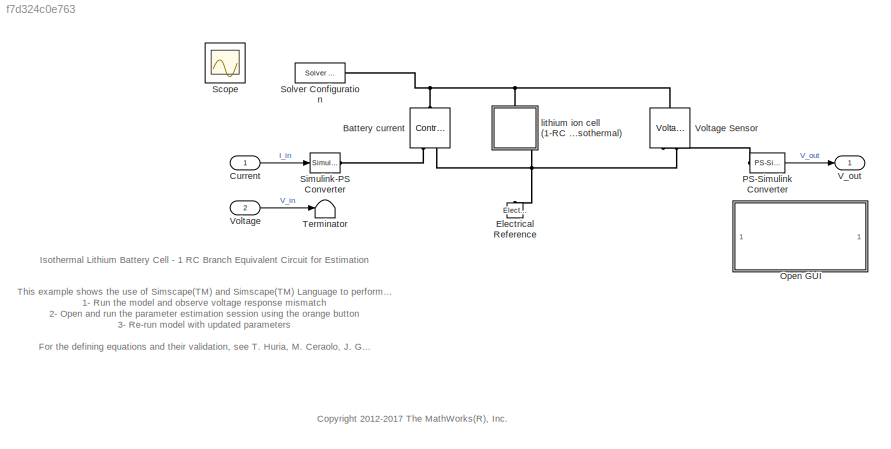
MODEL slx_f7d324c0e763
KIND model
CONFIG AbsTol = auto
CONFIG EnableMultiTasking = on
CONFIG FixedStep = auto
CONFIG MaxStep = 250
CONFIG MinStep = auto
CONFIG PreLoadFcn = ssc_lithium_cell_1RC_estim_ini
CONFIG RelTol = 1e-3
CONFIG SampleTimeConstraint = Unconstrained
CONFIG Solver = ode15s
CONFIG SolverName = ode15s
CONFIG StartTime = 0
CONFIG StopTime = 37000
BLOCK [Reference] Battery current  REF=fl_lib/Electrical/Electrical Sources/Controlled Current
Source
  Ports = [0, 0, 0, 0, 0, 1, 2]
  SourceBlock = fl_lib/Electrical/Electrical Sources/Controlled Current\nSource
  SourceProductBaseCode = SS
  SourceProductName = Simscape
  SourceType = Controlled Current\nSource
BLOCK [Inport] Current
  IconDisplay = Port number
BLOCK [Reference] Electrical Reference  REF=fl_lib/Electrical/Electrical Elements/Electrical Reference
  Ports = [0, 0, 0, 0, 0, 1]
  SourceBlock = fl_lib/Electrical/Electrical Elements/Electrical Reference
  SourceProductBaseCode = SS
  SourceProductName = Simscape
  SourceType = Electrical Reference
BLOCK [SubSystem] Open GUI
  OpenFcn = % speload('ssc_lithium_cell_SDO_Project', 'Project - ssc_lithium_cell_1RC_estim', 'One Temp Estim');\nspeload('ssc_lithium_cell_1RC_estim_spesession')
  Ports = []
  RequestExecContextInheritance = off
  Variant = off
BLOCK [Reference] PS-Simulink Converter  REF=nesl_utility/PS-Simulink
Converter
  Ports = [0, 1, 0, 0, 0, 1]
  SourceBlock = nesl_utility/PS-Simulink\nConverter
  SourceProductBaseCode = SS
  SourceProductName = Simscape
  SourceType = PS-Simulink\nConverter
BLOCK [Scope] Scope
  IOType = viewer
  NumInputPorts = 1
  Ports = []
  ScopeSpecificationString = Simulink.scopes.TimeScopeBlockCfg('CurrentConfiguration', extmgr.ConfigurationSet(extmgr.Configuration('Core','General UI',true),extmgr.Configuration('Core','Source UI',true),extmgr.Configuration('Sources','WiredSimulink',true,'DataLoggingMaxPoints','7500','DataLoggingSaveFormat','Array','DataLoggingDecimation','1','DataLoggingDecimateData',true),extmgr.Configuration('Visuals','Time Domain',true,'...<+3074ch>
BLOCK [Reference] Simulink-PS Converter  REF=nesl_utility/Simulink-PS
Converter
  Ports = [1, 0, 0, 0, 0, 0, 1]
  SourceBlock = nesl_utility/Simulink-PS\nConverter
  SourceProductBaseCode = SS
  SourceProductName = Simscape
  SourceType = Simulink-PS\nConverter
BLOCK [Reference] Solver Configuration  REF=nesl_utility/Solver
Configuration
  Ports = [0, 0, 0, 0, 0, 0, 1]
  SourceBlock = nesl_utility/Solver\nConfiguration
  SourceProductBaseCode = SS
  SourceProductName = Simscape
  SourceType = Solver\nConfiguration
BLOCK [Terminator] Terminator
BLOCK [Outport] V_out
  IconDisplay = Port number
BLOCK [Inport] Voltage
  IconDisplay = Port number
  Port = 2
BLOCK [Reference] Voltage Sensor  REF=fl_lib/Electrical/Electrical Sensors/Voltage Sensor
  Ports = [0, 0, 0, 0, 0, 1, 2]
  SourceBlock = fl_lib/Electrical/Electrical Sensors/Voltage Sensor
  SourceProductBaseCode = SS
  SourceProductName = Simscape
  SourceType = Voltage Sensor
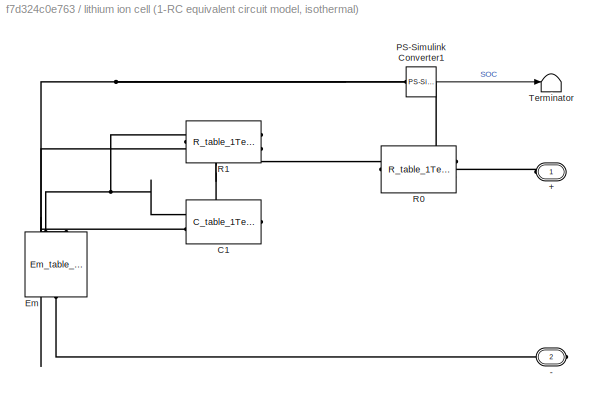
BLOCK [SubSystem] lithium ion cell (1-RC equivalent circuit model, isothermal)
  Ports = [0, 0, 0, 0, 0, 1, 1]
  RequestExecContextInheritance = off
  Variant = off
BLOCK [PMIOPort] lithium ion cell (1-RC equivalent circuit model, isothermal)/+
  Port = 1
  Side = Left
  Tag = PMCPort
BLOCK [PMIOPort] lithium ion cell (1-RC equivalent circuit model, isothermal)/-
  Port = 2
  Side = Right
  Tag = PMCPort
BLOCK [Reference] lithium ion cell (1-RC equivalent circuit model, isothermal)/C1  REF=LiBatteryElements_lib/C_table_1Temp
  Ports = [0, 0, 0, 0, 0, 2, 1]
  SourceBlock = LiBatteryElements_lib/C_table_1Temp
  SourceType = C_table_1Temp
BLOCK [Reference] lithium ion cell (1-RC equivalent circuit model, isothermal)/Em  REF=LiBatteryElements_lib/Em_table_1Temp
  Ports = [0, 0, 0, 0, 0, 2, 1]
  SourceBlock = LiBatteryElements_lib/Em_table_1Temp
  SourceType = Em_table_1Temp
BLOCK [Reference] lithium ion cell (1-RC equivalent circuit model, isothermal)/PS-Simulink Converter1  REF=nesl_utility/PS-Simulink
Converter
  Ports = [0, 1, 0, 0, 0, 1]
  SourceBlock = nesl_utility/PS-Simulink\nConverter
  SourceProductBaseCode = SS
  SourceProductName = Simscape
  SourceType = PS-Simulink\nConverter
BLOCK [Reference] lithium ion cell (1-RC equivalent circuit model, isothermal)/R0  REF=LiBatteryElements_lib/R_table_1Temp
  Ports = [0, 0, 0, 0, 0, 2, 1]
  SourceBlock = LiBatteryElements_lib/R_table_1Temp
  SourceType = R_table_1Temp
BLOCK [Reference] lithium ion cell (1-RC equivalent circuit model, isothermal)/R1  REF=LiBatteryElements_lib/R_table_1Temp
  Ports = [0, 0, 0, 0, 0, 2, 1]
  SourceBlock = LiBatteryElements_lib/R_table_1Temp
  SourceType = R_table_1Temp
BLOCK [Terminator] lithium ion cell (1-RC equivalent circuit model, isothermal)/Terminator
ANNOTATION (root): <copyright redacted>
ANNOTATION (root): Isothermal Lithium Battery Cell - 1 RC Branch Equivalent Circuit for Estimation
ANNOTATION (root): This example shows the use of Simscape(TM) and Simscape(TM) Language to perform parameter estimation on a 1-RC equivalent circuit for a lithium ion battery cell using an isothermal pulse discharge experiment. 1- Run the model and observe voltage response mismatch 2- Open and run the parameter estimation session using the orange button 3- Re-run model with updated parameters For the defining equati...<+265ch>
LINE Current:1 -> Simulink-PS Converter:1
LINE PS-Simulink Converter:1 -> V_out:1
LINE Voltage:1 -> Terminator:1
LINE lithium ion cell (1-RC equivalent circuit model, isothermal)/PS-Simulink Converter1:1 -> lithium ion cell (1-RC equivalent circuit model, isothermal)/Terminator:1
PNET net1: Battery current:LConn1 -- Solver Configuration:RConn1 -- Voltage Sensor:LConn1 -- lithium ion cell (1-RC equivalent circuit model, isothermal):LConn1
PLINE Battery current:RConn1 -- Simulink-PS Converter:RConn1
PNET net2: Battery current:RConn2 -- Electrical Reference:LConn1 -- Voltage Sensor:RConn2 -- lithium ion cell (1-RC equivalent circuit model, isothermal):RConn1
PLINE PS-Simulink Converter:LConn1 -- Voltage Sensor:RConn1
PLINE lithium ion cell (1-RC equivalent circuit model, isothermal)/+:RConn1 -- lithium ion cell (1-RC equivalent circuit model, isothermal)/R0:RConn1
PLINE lithium ion cell (1-RC equivalent circuit model, isothermal)/-:RConn1 -- lithium ion cell (1-RC equivalent circuit model, isothermal)/Em:RConn1
PNET net3: lithium ion cell (1-RC equivalent circuit model, isothermal)/C1:LConn1 -- lithium ion cell (1-RC equivalent circuit model, isothermal)/Em:LConn1 -- lithium ion cell (1-RC equivalent circuit model, isothermal)/R1:LConn1
PNET net4: lithium ion cell (1-RC equivalent circuit model, isothermal)/C1:LConn2 -- lithium ion cell (1-RC equivalent circuit model, isothermal)/Em:LConn2 -- lithium ion cell (1-RC equivalent circuit model, isothermal)/PS-Simulink Converter1:LConn1 -- lithium ion cell (1-RC equivalent circuit model, isothermal)/R0:LConn2 -- lithium ion cell (1-RC equivalent circuit model, isothermal)/R1:LConn2
PNET net5: lithium ion cell (1-RC equivalent circuit model, isothermal)/C1:RConn1 -- lithium ion cell (1-RC equivalent circuit model, isothermal)/R0:LConn1 -- lithium ion cell (1-RC equivalent circuit model, isothermal)/R1:RConn1
note: PNET lines group multi-terminal physical nets as a canonical sorted terminal list (undirected conserving connections); 2-terminal nets keep the pairwise PLINE form
